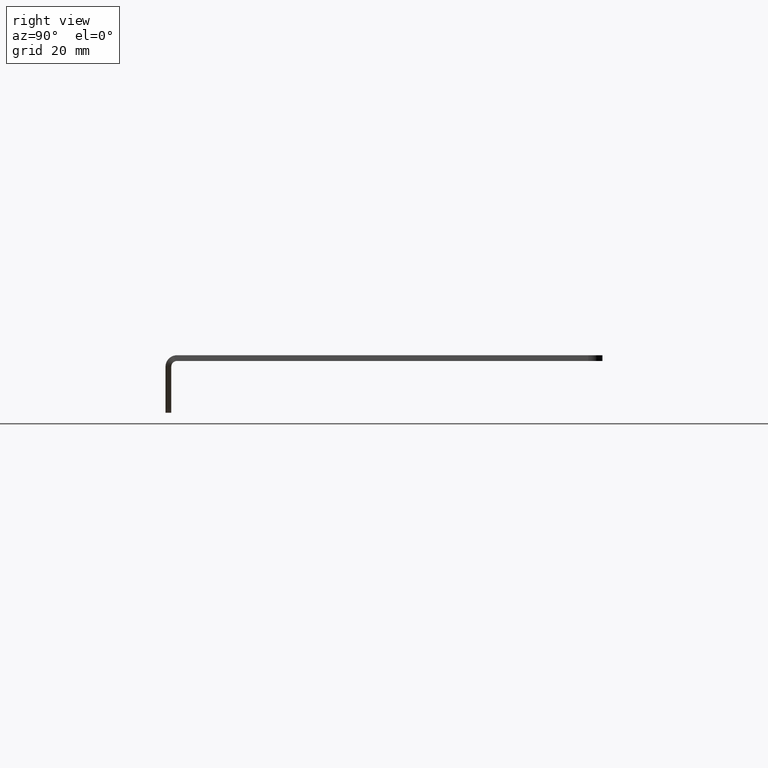
[diagram: clean part render]
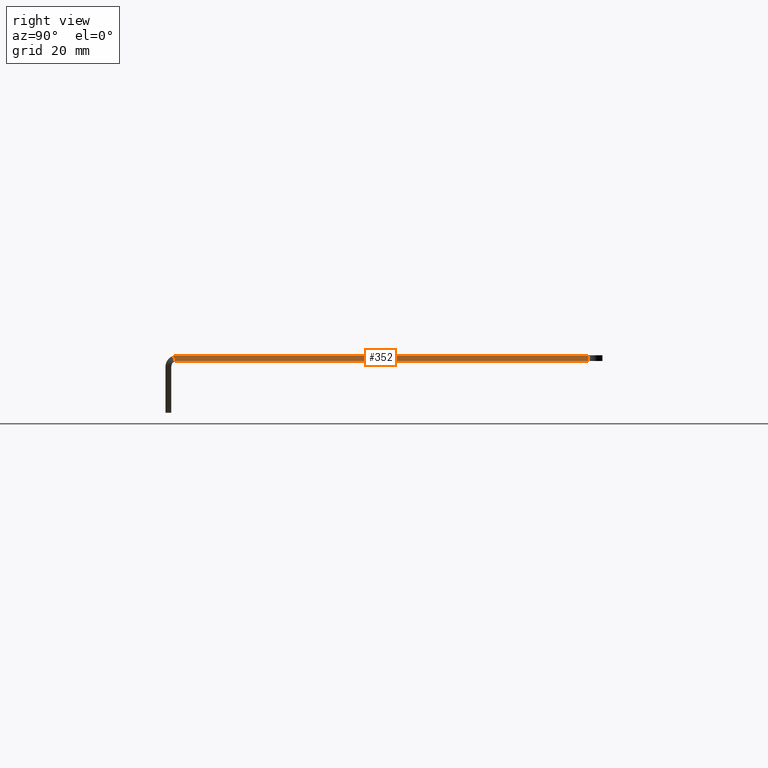
[diagram: same view with one face highlighted and labeled with its STEP entity id]
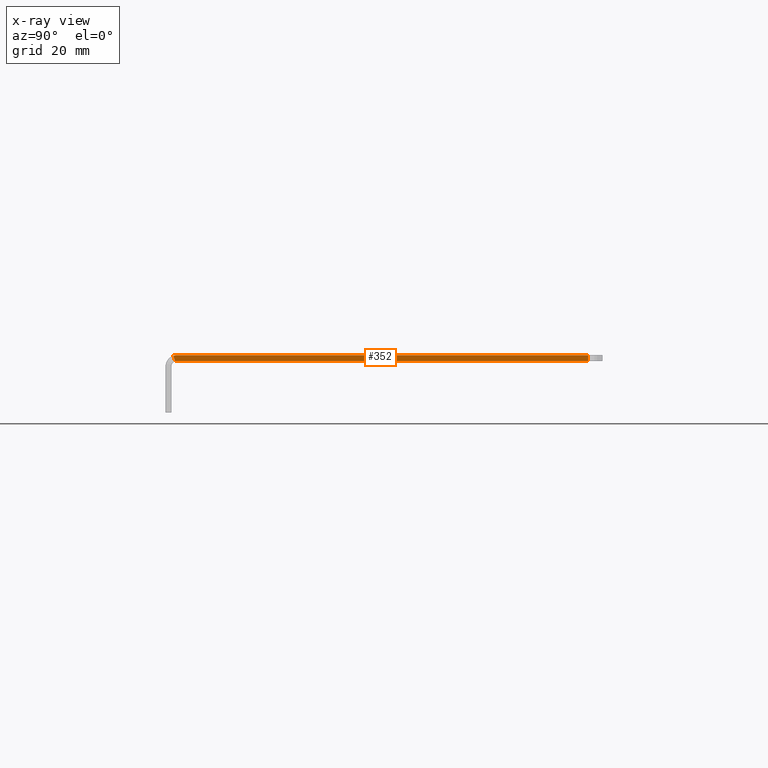
[diagram: x-ray of the same camera — body ghosted, the highlighted face saturated]
A machine part, right view. The second image highlights one B-rep face of the part: STEP entity #352.
The next image is the same camera in x-ray: the body ghosted, the highlighted face saturated — about 0% of this face is hidden behind the body in this view.
In plain terms, the highlighted planar face has unit normal (-1, 0, -0).
Its self-contained STEP definition (entity closure, byte-faithful):
#5 = DIRECTION ( 'NONE',  ( -0.000000000000000000, 0.000000000000000000, 1.000000000000000000 ) ) ;
#10 = CARTESIAN_POINT ( 'NONE',  ( 203.0999999999999943, 146.9999999999999716, 0.000000000000000000 ) ) ;
#63 = VERTEX_POINT ( 'NONE', #474 ) ;
#77 = CARTESIAN_POINT ( 'NONE',  ( 203.0999999999999091, 3.167333600213670497, -1.466666666666625707 ) ) ;
#90 = AXIS2_PLACEMENT_3D ( 'NONE', #640, #407, #934 ) ;
#91 = ORIENTED_EDGE ( 'NONE', *, *, #784, .T. ) ;
#110 = CARTESIAN_POINT ( 'NONE',  ( 203.0999999999999943, 3.999999999999997335, -2.000000000000000000 ) ) ;
#129 = ORIENTED_EDGE ( 'NONE', *, *, #383, .F. ) ;
#207 = LINE ( 'NONE', #999, #209 ) ;
#209 = VECTOR ( 'NONE', #849, 1000.000000000000000 ) ;
#210 =( BOUNDED_CURVE ( )  B_SPLINE_CURVE ( 3, ( #306, #77, #466, #385 ),
 .UNSPECIFIED., .F., .T. ) 
 B_SPLINE_CURVE_WITH_KNOTS ( ( 4, 4 ),
 ( 0.000000000000000000, 0.001999999999999999174 ),
 .UNSPECIFIED. ) 
 CURVE ( )  GEOMETRIC_REPRESENTATION_ITEM ( )  RATIONAL_B_SPLINE_CURVE ( ( 0.7620499723879277099, 0.7620499723879277099, 0.7620499723879277099, 0.7620499723879277099 ) ) 
 REPRESENTATION_ITEM ( '' )  );
#258 = AXIS2_PLACEMENT_3D ( 'NONE', #825, #916, #684 ) ;
#283 = CARTESIAN_POINT ( 'NONE',  ( 203.1000000000000227, 3.375500200160327591, -2.099999999999943689 ) ) ;
#306 = CARTESIAN_POINT ( 'NONE',  ( 203.1000000000000227, 3.375500200160328479, -2.099999999999943689 ) ) ;
#328 = VERTEX_POINT ( 'NONE', #10 ) ;
#352 = ADVANCED_FACE ( 'NONE', ( #722 ), #783, .F. ) ;
#370 = ORIENTED_EDGE ( 'NONE', *, *, #793, .F. ) ;
#383 = EDGE_CURVE ( 'NONE', #697, #781, #587, .T. ) ;
#385 = CARTESIAN_POINT ( 'NONE',  ( 203.0999999999999943, 2.751000400320329220, -0.1999999999999970968 ) ) ;
#390 = VECTOR ( 'NONE', #699, 1000.000000000000000 ) ;
#391 = DIRECTION ( 'NONE',  ( -1.000000000000000000, 0.000000000000000000, -0.000000000000000000 ) ) ;
#400 = ORIENTED_EDGE ( 'NONE', *, *, #790, .T. ) ;
#407 = DIRECTION ( 'NONE',  ( 1.000000000000000000, 0.000000000000000000, 0.000000000000000000 ) ) ;
#412 = CARTESIAN_POINT ( 'NONE',  ( 203.0999999999999943, 3.999999999999995559, 0.000000000000000000 ) ) ;
#418 = EDGE_CURVE ( 'NONE', #781, #917, #210, .T. ) ;
#449 = ORIENTED_EDGE ( 'NONE', *, *, #418, .F. ) ;
#457 = LINE ( 'NONE', #988, #960 ) ;
#463 = CARTESIAN_POINT ( 'NONE',  ( 203.0999999999999943, 146.9999999999999716, -20.00100000000000122 ) ) ;
#466 = CARTESIAN_POINT ( 'NONE',  ( 203.0999999999999091, 2.959167000267088454, -0.8333333333332818560 ) ) ;
#474 = CARTESIAN_POINT ( 'NONE',  ( 203.0999999999999943, 146.9999999999999716, -1.999999999999998224 ) ) ;
#562 = CIRCLE ( 'NONE', #258, 4.000000000000000000 ) ;
#587 = CIRCLE ( 'NONE', #90, 2.000000000000000000 ) ;
#598 = VERTEX_POINT ( 'NONE', #412 ) ;
#611 = LINE ( 'NONE', #463, #390 ) ;
#640 = CARTESIAN_POINT ( 'NONE',  ( 203.0999999999999943, 3.999999999999999112, -4.000000000000000000 ) ) ;
#646 = ORIENTED_EDGE ( 'NONE', *, *, #724, .T. ) ;
#684 = DIRECTION ( 'NONE',  ( 0.000000000000000000, -8.673617379884035472E-16, 1.000000000000000000 ) ) ;
#697 = VERTEX_POINT ( 'NONE', #110 ) ;
#699 = DIRECTION ( 'NONE',  ( -0.000000000000000000, -0.000000000000000000, 1.000000000000000000 ) ) ;
#710 = CARTESIAN_POINT ( 'NONE',  ( 203.0999999999999943, 2.751000400320329220, -0.1999999999999970968 ) ) ;
#722 = FACE_OUTER_BOUND ( 'NONE', #729, .T. ) ;
#724 = EDGE_CURVE ( 'NONE', #598, #917, #562, .T. ) ;
#729 = EDGE_LOOP ( 'NONE', ( #646, #449, #129, #370, #91, #400 ) ) ;
#781 = VERTEX_POINT ( 'NONE', #283 ) ;
#783 = PLANE ( 'NONE',  #811 ) ;
#784 = EDGE_CURVE ( 'NONE', #63, #328, #611, .T. ) ;
#790 = EDGE_CURVE ( 'NONE', #328, #598, #207, .T. ) ;
#793 = EDGE_CURVE ( 'NONE', #63, #697, #457, .T. ) ;
#796 = CARTESIAN_POINT ( 'NONE',  ( 203.0999999999999943, 146.9999999999999716, -20.00100000000000122 ) ) ;
#811 = AXIS2_PLACEMENT_3D ( 'NONE', #796, #391, #5 ) ;
#825 = CARTESIAN_POINT ( 'NONE',  ( 203.0999999999999943, 3.999999999999999112, -4.000000000000000000 ) ) ;
#849 = DIRECTION ( 'NONE',  ( 0.000000000000000000, -1.000000000000000000, 0.000000000000000000 ) ) ;
#904 = DIRECTION ( 'NONE',  ( 0.000000000000000000, -1.000000000000000000, 0.000000000000000000 ) ) ;
#916 = DIRECTION ( 'NONE',  ( 1.000000000000000000, 0.000000000000000000, 0.000000000000000000 ) ) ;
#917 = VERTEX_POINT ( 'NONE', #710 ) ;
#934 = DIRECTION ( 'NONE',  ( 0.000000000000000000, -8.673617379884035472E-16, 1.000000000000000000 ) ) ;
#960 = VECTOR ( 'NONE', #904, 1000.000000000000000 ) ;
#988 = CARTESIAN_POINT ( 'NONE',  ( 203.0999999999999943, 146.9999999999999716, -1.999999999999998224 ) ) ;
#999 = CARTESIAN_POINT ( 'NONE',  ( 203.0999999999999943, 146.9999999999999716, 0.000000000000000000 ) ) ;